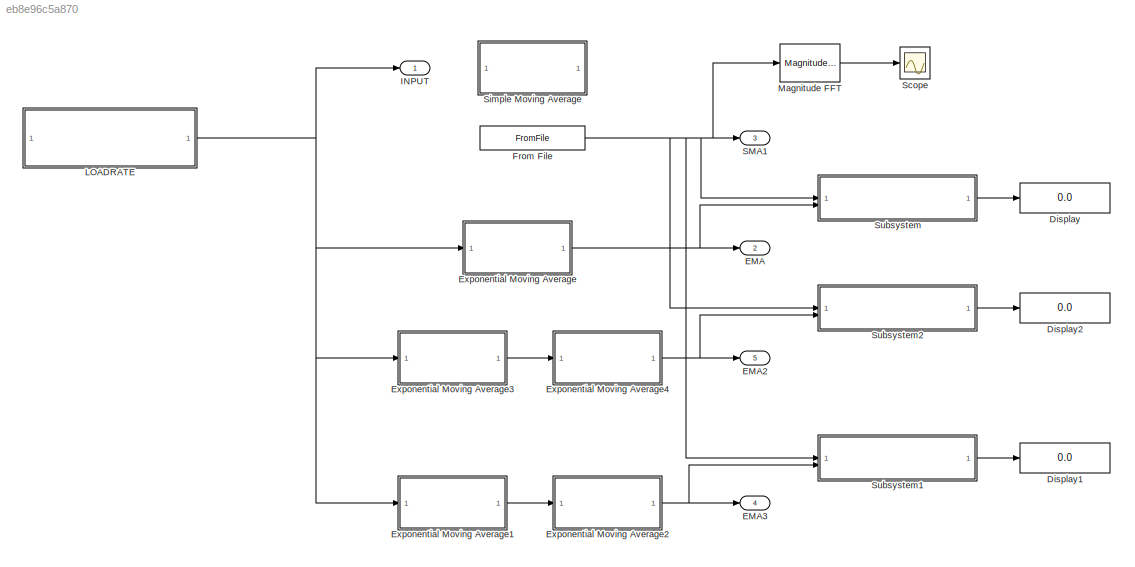
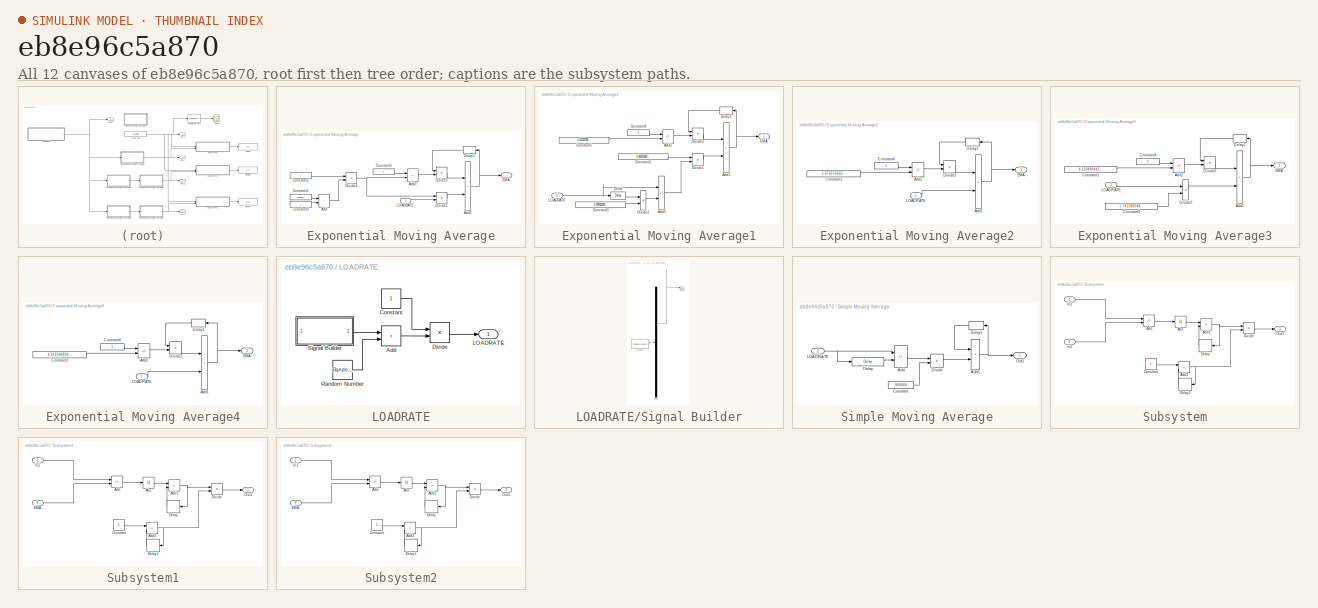
[diagram: thumbnail index - all 12 canvases of the model, root first then tree order]
MODEL slx_eb8e96c5a870
KIND model
CONFIG AbsTol = auto
CONFIG EnableMultiTasking = off
CONFIG FixedStep = 1/3600
CONFIG MaxStep = auto
CONFIG MinStep = auto
CONFIG RelTol = 1e-3
CONFIG SampleTimeConstraint = Unconstrained
CONFIG SolverName = FixedStepAuto
CONFIG StartTime = 0.0
CONFIG StopTime = 1500
BLOCK [Display] Display
  Decimation = 1
BLOCK [Display] Display1
  Decimation = 1
BLOCK [Display] Display2
  Decimation = 1
BLOCK [Outport] EMA
  Port = 2
BLOCK [Outport] EMA2
  Port = 5
BLOCK [Outport] EMA3
  Port = 4
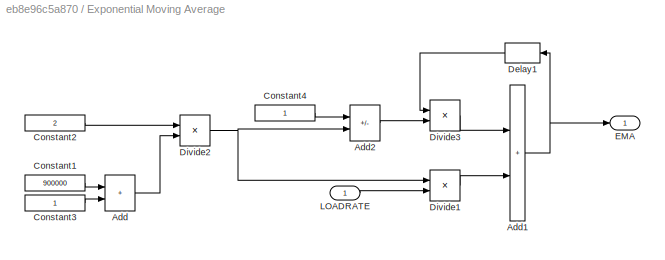
BLOCK [SubSystem] Exponential Moving Average
BLOCK [Sum] Exponential Moving Average/Add
  IconShape = rectangular
BLOCK [Sum] Exponential Moving Average/Add1
  IconShape = rectangular
BLOCK [Sum] Exponential Moving Average/Add2
  IconShape = rectangular
  Inputs = +-
BLOCK [Constant] Exponential Moving Average/Constant1
  OutDataTypeStr = single
  Value = 900000
BLOCK [Constant] Exponential Moving Average/Constant2
  OutDataTypeStr = single
  Value = 2
BLOCK [Constant] Exponential Moving Average/Constant3
  OutDataTypeStr = single
BLOCK [Constant] Exponential Moving Average/Constant4
  OutDataTypeStr = single
BLOCK [Delay] Exponential Moving Average/Delay1
  DelayLength = 1
  InitialCondition = 60
  InputPortMap = u0
BLOCK [Product] Exponential Moving Average/Divide1
  Inputs = **
BLOCK [Product] Exponential Moving Average/Divide2
  Inputs = */
BLOCK [Product] Exponential Moving Average/Divide3
  Inputs = **
BLOCK [Outport] Exponential Moving Average/EMA
BLOCK [Inport] Exponential Moving Average/LOADRATE
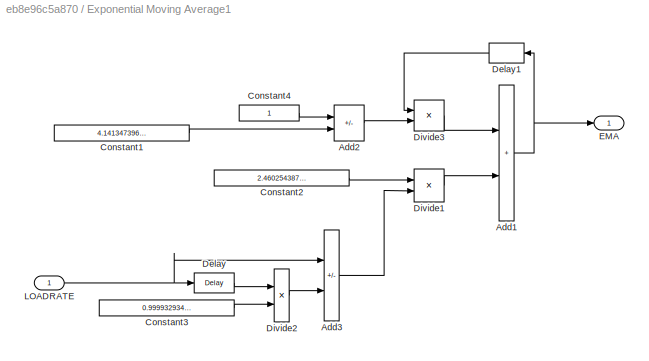
BLOCK [SubSystem] Exponential Moving Average1
BLOCK [Sum] Exponential Moving Average1/Add1
  IconShape = rectangular
BLOCK [Sum] Exponential Moving Average1/Add2
  IconShape = rectangular
  Inputs = +-
BLOCK [Sum] Exponential Moving Average1/Add3
  IconShape = rectangular
  Inputs = +-
BLOCK [Constant] Exponential Moving Average1/Constant1
  OutDataTypeStr = single
  Value = 4.141347396113361e-06
BLOCK [Constant] Exponential Moving Average1/Constant2
  OutDataTypeStr = single
  Value = 2.460254387547014e-07
BLOCK [Constant] Exponential Moving Average1/Constant3
  OutDataTypeStr = single
  Value = 0.999932934486795
BLOCK [Constant] Exponential Moving Average1/Constant4
  OutDataTypeStr = single
BLOCK [Delay] Exponential Moving Average1/Delay
  DelayLength = 1
  InitialCondition = 60
  InputPortMap = u0
BLOCK [Delay] Exponential Moving Average1/Delay1
  DelayLength = 1
  InitialCondition = 0.000238234
  InputPortMap = u0
BLOCK [Product] Exponential Moving Average1/Divide1
  Inputs = **
BLOCK [Product] Exponential Moving Average1/Divide2
  Inputs = **
BLOCK [Product] Exponential Moving Average1/Divide3
  Inputs = **
BLOCK [Outport] Exponential Moving Average1/EMA
BLOCK [Inport] Exponential Moving Average1/LOADRATE
BLOCK [SubSystem] Exponential Moving Average2
  NameLocation = left
BLOCK [Sum] Exponential Moving Average2/Add1
  IconShape = rectangular
BLOCK [Sum] Exponential Moving Average2/Add2
  IconShape = rectangular
  Inputs = +-
BLOCK [Constant] Exponential Moving Average2/Constant1
  OutDataTypeStr = single
  Value = 3.970570935940934e-06
BLOCK [Constant] Exponential Moving Average2/Constant4
  OutDataTypeStr = single
BLOCK [Delay] Exponential Moving Average2/Delay1
  DelayLength = 1
  InitialCondition = 60
  InputPortMap = u0
BLOCK [Product] Exponential Moving Average2/Divide3
  Inputs = **
BLOCK [Outport] Exponential Moving Average2/EMA
BLOCK [Inport] Exponential Moving Average2/LOADRATE
BLOCK [SubSystem] Exponential Moving Average3
BLOCK [Sum] Exponential Moving Average3/Add1
  IconShape = rectangular
BLOCK [Sum] Exponential Moving Average3/Add2
  IconShape = rectangular
  Inputs = +-
BLOCK [Constant] Exponential Moving Average3/Constant1
  OutDataTypeStr = single
  Value = 4.120898443207050e-06
BLOCK [Constant] Exponential Moving Average3/Constant3
  OutDataTypeStr = single
  Value = 1.742280089833758e-11
BLOCK [Constant] Exponential Moving Average3/Constant4
  OutDataTypeStr = single
BLOCK [Delay] Exponential Moving Average3/Delay1
  DelayLength = 1
  InitialCondition = 0.000252816
  InputPortMap = u0
BLOCK [Product] Exponential Moving Average3/Divide2
  Inputs = **
BLOCK [Product] Exponential Moving Average3/Divide3
  Inputs = **
BLOCK [Outport] Exponential Moving Average3/EMA
BLOCK [Inport] Exponential Moving Average3/LOADRATE
BLOCK [SubSystem] Exponential Moving Average4
BLOCK [Sum] Exponential Moving Average4/Add1
  IconShape = rectangular
BLOCK [Sum] Exponential Moving Average4/Add2
  IconShape = rectangular
  Inputs = +-
BLOCK [Constant] Exponential Moving Average4/Constant1
  OutDataTypeStr = single
  Value = 4.213596409140841e-06
BLOCK [Constant] Exponential Moving Average4/Constant4
  OutDataTypeStr = single
BLOCK [Delay] Exponential Moving Average4/Delay1
  DelayLength = 1
  InitialCondition = 60
  InputPortMap = u0
BLOCK [Product] Exponential Moving Average4/Divide3
  Inputs = **
BLOCK [Outport] Exponential Moving Average4/EMA
BLOCK [Inport] Exponential Moving Average4/LOADRATE
BLOCK [FromFile] From File
  FileName = SMA2.mat
  SampleTime = 0
BLOCK [Outport] INPUT
BLOCK [SubSystem] LOADRATE
BLOCK [Sum] LOADRATE/Add
  IconShape = rectangular
BLOCK [Constant] LOADRATE/Constant
  OutDataTypeStr = single
BLOCK [Product] LOADRATE/Divide
  Inputs = **
  OutDataTypeStr = Inherit: Same as first input
BLOCK [Outport] LOADRATE/LOADRATE
  SampleTime = 1/3600
BLOCK [RandomNumber] LOADRATE/Random Number
  Mean = 5
  SampleTime = 1/3600
BLOCK [SubSystem] LOADRATE/Signal Builder
  ClipboardFcn = sigbuilder_block('clipboard');
  CloseFcn = sigbuilder_block('close');
  ContinueFcn = sigbuilder_block('continue');
  CopyFcn = sigbuilder_block('copy');
  DeleteFcn = sigbuilder_block('delete');
  LoadFcn = sigbuilder_block('load');
  MaskHideContents = on
  ModelCloseFcn = sigbuilder_block('modelClose');
  NameChangeFcn = sigbuilder_block('namechange');
  OpenFcn = sigbuilder_block('open',[6 36 1428 675.75 ]);
  PauseFcn = sigbuilder_block('pause');
  PreSaveFcn = sigbuilder_block('preSave');
  StartFcn = sigbuilder_block('start');
  StopFcn = sigbuilder_block('stop');
  Tag = STV Subsys
BLOCK [Demux] LOADRATE/Signal Builder/Demux
  DisplayOption = none
  Outputs = 1
  Tag = STV Demux
BLOCK [FromWorkspace] LOADRATE/Signal Builder/FromWs
  Tag = STV FromWs
  VariableName = tuvar
BLOCK [Outport] LOADRATE/Signal Builder/Signal 1
  Tag = STV Outport
BLOCK [Reference] Magnitude FFT  REF=dspspect3/Magnitude
FFT
  LibrarySourceBlock = dspxfrm3/Magnitude\nFFT
  SourceBlock = dspspect3/Magnitude\nFFT
  SourceType = Magnitude FFT
BLOCK [Outport] SMA1
  Port = 3
BLOCK [Scope] Scope
  Floating = off
  NumInputPorts = 1
  ScopeSpecificationString = Simulink.scopes.TimeScopeBlockCfg('CurrentConfiguration', extmgr.ConfigurationSet(extmgr.Configuration('Core','General UI',true),extmgr.Configuration('Core','Source UI',true),extmgr.Configuration('Sources','WiredSimulink',true),extmgr.Configuration('Visuals','Time Domain',true,'SerializedDisplays',{struct('MinYLimReal','2051.22958','MaxYLimReal','5774.10709','YLabelReal','','MinYLimMag','2051.2295...<+6442ch>
BLOCK [SubSystem] Simple Moving Average
  Commented = on
BLOCK [Sum] Simple Moving Average/Add
  IconShape = rectangular
  Inputs = +-
BLOCK [Sum] Simple Moving Average/Add1
  IconShape = rectangular
BLOCK [Constant] Simple Moving Average/Constant
  OutDataTypeStr = single
  Value = 900000
BLOCK [Delay] Simple Moving Average/Delay
  DelayLength = 900000
  InitialCondition = 60
  InputPortMap = u0
BLOCK [Delay] Simple Moving Average/Delay1
  DelayLength = 1
  InitialCondition = 60
  InputPortMap = u0
BLOCK [Product] Simple Moving Average/Divide
  Inputs = */
BLOCK [Inport] Simple Moving Average/LOADRATE
BLOCK [Outport] Simple Moving Average/Out1
BLOCK [SubSystem] Subsystem
BLOCK [Abs] Subsystem/Abs
  SaturateOnIntegerOverflow = off
BLOCK [Sum] Subsystem/Add
  IconShape = rectangular
  Inputs = +-
BLOCK [Sum] Subsystem/Add1
  IconShape = rectangular
BLOCK [Sum] Subsystem/Add2
  IconShape = rectangular
BLOCK [Constant] Subsystem/Constant
BLOCK [Delay] Subsystem/Delay
  DelayLength = 1
  InputPortMap = u0
BLOCK [Delay] Subsystem/Delay1
  DelayLength = 1
  InputPortMap = u0
BLOCK [Product] Subsystem/Divide
  Inputs = */
BLOCK [Inport] Subsystem/In1
BLOCK [Inport] Subsystem/In2
  Port = 2
BLOCK [Outport] Subsystem/Out1
BLOCK [SubSystem] Subsystem1
BLOCK [Abs] Subsystem1/Abs
  SaturateOnIntegerOverflow = off
BLOCK [Sum] Subsystem1/Add
  IconShape = rectangular
  Inputs = +-
BLOCK [Sum] Subsystem1/Add1
  IconShape = rectangular
BLOCK [Sum] Subsystem1/Add2
  IconShape = rectangular
BLOCK [Constant] Subsystem1/Constant
BLOCK [Delay] Subsystem1/Delay
  DelayLength = 1
  InputPortMap = u0
BLOCK [Delay] Subsystem1/Delay1
  DelayLength = 1
  InputPortMap = u0
BLOCK [Product] Subsystem1/Divide
  Inputs = */
BLOCK [Inport] Subsystem1/EMA
  Port = 2
BLOCK [Inport] Subsystem1/In1
BLOCK [Outport] Subsystem1/Out1
BLOCK [SubSystem] Subsystem2
BLOCK [Abs] Subsystem2/Abs
  SaturateOnIntegerOverflow = off
BLOCK [Sum] Subsystem2/Add
  IconShape = rectangular
  Inputs = +-
BLOCK [Sum] Subsystem2/Add1
  IconShape = rectangular
BLOCK [Sum] Subsystem2/Add2
  IconShape = rectangular
BLOCK [Constant] Subsystem2/Constant
BLOCK [Delay] Subsystem2/Delay
  DelayLength = 1
  InputPortMap = u0
BLOCK [Delay] Subsystem2/Delay1
  DelayLength = 1
  InputPortMap = u0
BLOCK [Product] Subsystem2/Divide
  Inputs = */
BLOCK [Inport] Subsystem2/EMA
  Port = 2
BLOCK [Inport] Subsystem2/In1
BLOCK [Outport] Subsystem2/Out1
NET Exponential Moving Average/Add1:1 -> Exponential Moving Average/Delay1:1, Exponential Moving Average/EMA:1
LINE Exponential Moving Average/Add2:1 -> Exponential Moving Average/Divide3:2
LINE Exponential Moving Average/Add:1 -> Exponential Moving Average/Divide2:2
LINE Exponential Moving Average/Constant1:1 -> Exponential Moving Average/Add:1
LINE Exponential Moving Average/Constant2:1 -> Exponential Moving Average/Divide2:1
LINE Exponential Moving Average/Constant3:1 -> Exponential Moving Average/Add:2
LINE Exponential Moving Average/Constant4:1 -> Exponential Moving Average/Add2:1
LINE Exponential Moving Average/Delay1:1 -> Exponential Moving Average/Divide3:1
LINE Exponential Moving Average/Divide1:1 -> Exponential Moving Average/Add1:2
NET Exponential Moving Average/Divide2:1 -> Exponential Moving Average/Add2:2, Exponential Moving Average/Divide1:1
LINE Exponential Moving Average/Divide3:1 -> Exponential Moving Average/Add1:1
LINE Exponential Moving Average/LOADRATE:1 -> Exponential Moving Average/Divide1:2
NET Exponential Moving Average1/Add1:1 -> Exponential Moving Average1/Delay1:1, Exponential Moving Average1/EMA:1
LINE Exponential Moving Average1/Add2:1 -> Exponential Moving Average1/Divide3:2
LINE Exponential Moving Average1/Add3:1 -> Exponential Moving Average1/Divide1:2
LINE Exponential Moving Average1/Constant1:1 -> Exponential Moving Average1/Add2:2
LINE Exponential Moving Average1/Constant2:1 -> Exponential Moving Average1/Divide1:1
LINE Exponential Moving Average1/Constant3:1 -> Exponential Moving Average1/Divide2:2
LINE Exponential Moving Average1/Constant4:1 -> Exponential Moving Average1/Add2:1
LINE Exponential Moving Average1/Delay1:1 -> Exponential Moving Average1/Divide3:1
LINE Exponential Moving Average1/Delay:1 -> Exponential Moving Average1/Divide2:1
LINE Exponential Moving Average1/Divide1:1 -> Exponential Moving Average1/Add1:2
LINE Exponential Moving Average1/Divide2:1 -> Exponential Moving Average1/Add3:2
LINE Exponential Moving Average1/Divide3:1 -> Exponential Moving Average1/Add1:1
NET Exponential Moving Average1/LOADRATE:1 -> Exponential Moving Average1/Add3:1, Exponential Moving Average1/Delay:1
LINE Exponential Moving Average1:1 -> Exponential Moving Average2:1
NET Exponential Moving Average2/Add1:1 -> Exponential Moving Average2/Delay1:1, Exponential Moving Average2/EMA:1
LINE Exponential Moving Average2/Add2:1 -> Exponential Moving Average2/Divide3:2
LINE Exponential Moving Average2/Constant1:1 -> Exponential Moving Average2/Add2:2
LINE Exponential Moving Average2/Constant4:1 -> Exponential Moving Average2/Add2:1
LINE Exponential Moving Average2/Delay1:1 -> Exponential Moving Average2/Divide3:1
LINE Exponential Moving Average2/Divide3:1 -> Exponential Moving Average2/Add1:1
LINE Exponential Moving Average2/LOADRATE:1 -> Exponential Moving Average2/Add1:2
NET Exponential Moving Average2:1 -> EMA3:1, Subsystem1:2
NET Exponential Moving Average3/Add1:1 -> Exponential Moving Average3/Delay1:1, Exponential Moving Average3/EMA:1
LINE Exponential Moving Average3/Add2:1 -> Exponential Moving Average3/Divide3:2
LINE Exponential Moving Average3/Constant1:1 -> Exponential Moving Average3/Add2:2
LINE Exponential Moving Average3/Constant3:1 -> Exponential Moving Average3/Divide2:2
LINE Exponential Moving Average3/Constant4:1 -> Exponential Moving Average3/Add2:1
LINE Exponential Moving Average3/Delay1:1 -> Exponential Moving Average3/Divide3:1
LINE Exponential Moving Average3/Divide2:1 -> Exponential Moving Average3/Add1:2
LINE Exponential Moving Average3/Divide3:1 -> Exponential Moving Average3/Add1:1
LINE Exponential Moving Average3/LOADRATE:1 -> Exponential Moving Average3/Divide2:1
LINE Exponential Moving Average3:1 -> Exponential Moving Average4:1
NET Exponential Moving Average4/Add1:1 -> Exponential Moving Average4/Delay1:1, Exponential Moving Average4/EMA:1
LINE Exponential Moving Average4/Add2:1 -> Exponential Moving Average4/Divide3:2
LINE Exponential Moving Average4/Constant1:1 -> Exponential Moving Average4/Add2:2
LINE Exponential Moving Average4/Constant4:1 -> Exponential Moving Average4/Add2:1
LINE Exponential Moving Average4/Delay1:1 -> Exponential Moving Average4/Divide3:1
LINE Exponential Moving Average4/Divide3:1 -> Exponential Moving Average4/Add1:1
LINE Exponential Moving Average4/LOADRATE:1 -> Exponential Moving Average4/Add1:2
NET Exponential Moving Average4:1 -> EMA2:1, Subsystem2:2
NET Exponential Moving Average:1 -> EMA:1, Subsystem:2
NET From File:1 -> Magnitude FFT:1, SMA1:1, Subsystem1:1, Subsystem2:1, Subsystem:1
LINE LOADRATE/Add:1 -> LOADRATE/Divide:2
LINE LOADRATE/Constant:1 -> LOADRATE/Divide:1
LINE LOADRATE/Divide:1 -> LOADRATE/LOADRATE:1
LINE LOADRATE/Random Number:1 -> LOADRATE/Add:2
LINE LOADRATE/Signal Builder:1 -> LOADRATE/Add:1
NET LOADRATE:1 -> Exponential Moving Average1:1, Exponential Moving Average3:1, Exponential Moving Average:1, INPUT:1
LINE Magnitude FFT:1 -> Scope:1
NET Simple Moving Average/Add1:1 -> Simple Moving Average/Delay1:1, Simple Moving Average/Out1:1
LINE Simple Moving Average/Add:1 -> Simple Moving Average/Divide:1
LINE Simple Moving Average/Constant:1 -> Simple Moving Average/Divide:2
LINE Simple Moving Average/Delay1:1 -> Simple Moving Average/Add1:1
LINE Simple Moving Average/Delay:1 -> Simple Moving Average/Add:2
LINE Simple Moving Average/Divide:1 -> Simple Moving Average/Add1:2
NET Simple Moving Average/LOADRATE:1 -> Simple Moving Average/Add:1, Simple Moving Average/Delay:1
LINE Subsystem/Abs:1 -> Subsystem/Add1:1
NET Subsystem/Add1:1 -> Subsystem/Delay:1, Subsystem/Divide:1
NET Subsystem/Add2:1 -> Subsystem/Delay1:1, Subsystem/Divide:2
LINE Subsystem/Add:1 -> Subsystem/Abs:1
LINE Subsystem/Constant:1 -> Subsystem/Add2:1
LINE Subsystem/Delay1:1 -> Subsystem/Add2:2
LINE Subsystem/Delay:1 -> Subsystem/Add1:2
LINE Subsystem/Divide:1 -> Subsystem/Out1:1
LINE Subsystem/In1:1 -> Subsystem/Add:1
LINE Subsystem/In2:1 -> Subsystem/Add:2
LINE Subsystem1/Abs:1 -> Subsystem1/Add1:1
NET Subsystem1/Add1:1 -> Subsystem1/Delay:1, Subsystem1/Divide:1
NET Subsystem1/Add2:1 -> Subsystem1/Delay1:1, Subsystem1/Divide:2
LINE Subsystem1/Add:1 -> Subsystem1/Abs:1
LINE Subsystem1/Constant:1 -> Subsystem1/Add2:1
LINE Subsystem1/Delay1:1 -> Subsystem1/Add2:2
LINE Subsystem1/Delay:1 -> Subsystem1/Add1:2
LINE Subsystem1/Divide:1 -> Subsystem1/Out1:1
LINE Subsystem1/EMA:1 -> Subsystem1/Add:2
LINE Subsystem1/In1:1 -> Subsystem1/Add:1
LINE Subsystem1:1 -> Display1:1
LINE Subsystem2/Abs:1 -> Subsystem2/Add1:1
NET Subsystem2/Add1:1 -> Subsystem2/Delay:1, Subsystem2/Divide:1
NET Subsystem2/Add2:1 -> Subsystem2/Delay1:1, Subsystem2/Divide:2
LINE Subsystem2/Add:1 -> Subsystem2/Abs:1
LINE Subsystem2/Constant:1 -> Subsystem2/Add2:1
LINE Subsystem2/Delay1:1 -> Subsystem2/Add2:2
LINE Subsystem2/Delay:1 -> Subsystem2/Add1:2
LINE Subsystem2/Divide:1 -> Subsystem2/Out1:1
LINE Subsystem2/EMA:1 -> Subsystem2/Add:2
LINE Subsystem2/In1:1 -> Subsystem2/Add:1
LINE Subsystem2:1 -> Display2:1
LINE Subsystem:1 -> Display:1
note: NET lines group one-source signal fan-out (src -> all destinations, sorted); 1:1 wires keep LINE
